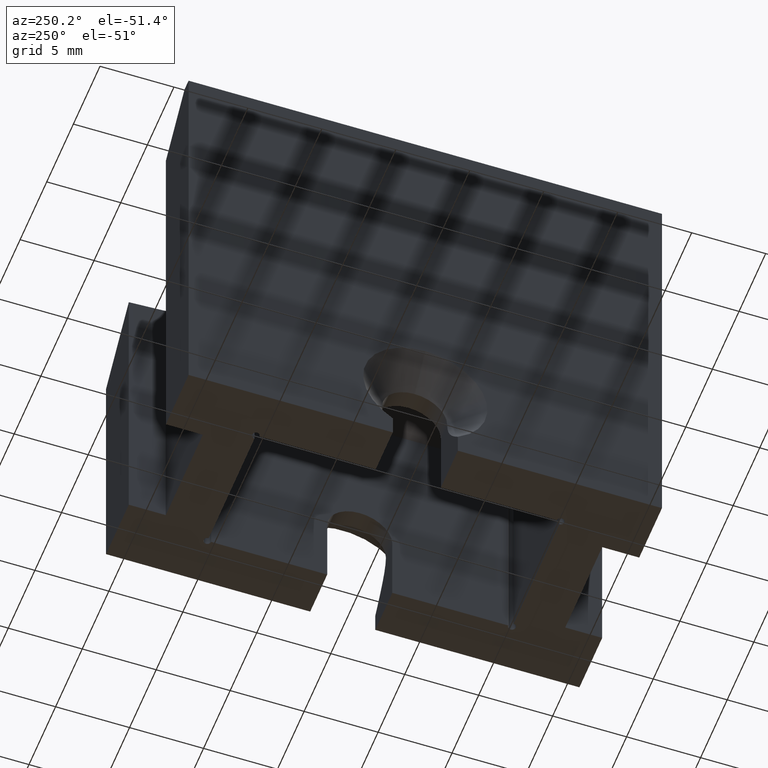
[diagram: clean part render]
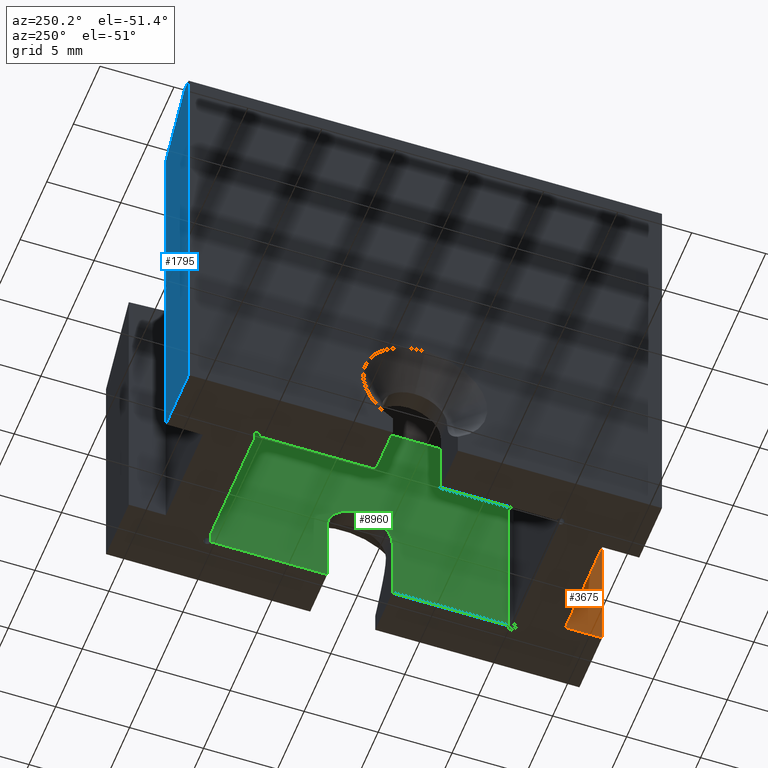
[diagram: same view with three faces highlighted in distinct colors, each labeled with its STEP entity id]
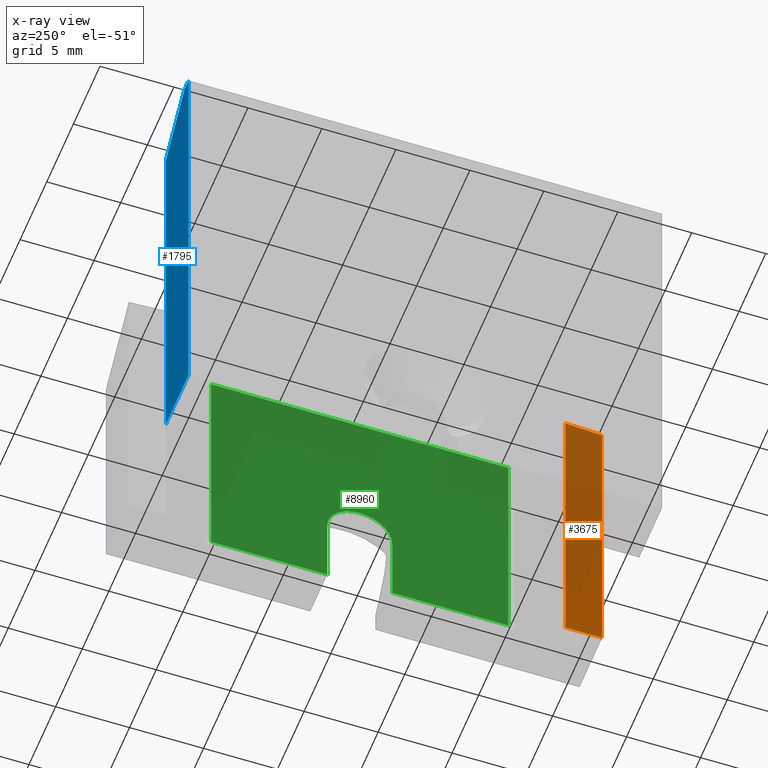
[diagram: x-ray of the same camera — body ghosted, the three highlighted faces saturated]
A machine part, auxiliary view with three faces highlighted in distinct colors.
The next image is the same camera in x-ray (body ghosted, the three faces saturated) — at least one of them is partly hidden behind the body in this view.
Their STEP definitions:

[orange] entity #3675 — the highlighted planar face has unit normal (1, -0, 0).
#258 = ORIENTED_EDGE ( 'NONE', *, *, #10290, .F. ) ;
#780 = FACE_OUTER_BOUND ( 'NONE', #6220, .T. ) ;
#811 = ORIENTED_EDGE ( 'NONE', *, *, #5697, .T. ) ;
#822 = VERTEX_POINT ( 'NONE', #12410 ) ;
#884 = ORIENTED_EDGE ( 'NONE', *, *, #1241, .T. ) ;
#893 = VECTOR ( 'NONE', #11157, 1000.000000000000114 ) ;
#1241 = EDGE_CURVE ( 'NONE', #5419, #822, #5281, .T. ) ;
#1320 = DIRECTION ( 'NONE',  ( -0.000000000000000000, -0.000000000000000000, -1.000000000000000000 ) ) ;
#1560 = AXIS2_PLACEMENT_3D ( 'NONE', #7997, #1972, #5006 ) ;
#1972 = DIRECTION ( 'NONE',  ( 1.000000000000000000, -1.734723475976804383E-16, 0.000000000000000000 ) ) ;
#2600 = CARTESIAN_POINT ( 'NONE',  ( 3.475000000000003642, -13.50000000000000000, -15.00000000000000000 ) ) ;
#3128 = LINE ( 'NONE', #9351, #10540 ) ;
#3199 = VERTEX_POINT ( 'NONE', #13059 ) ;
#3675 = ADVANCED_FACE ( 'NONE', ( #780 ), #3992, .F. ) ;
#3992 = PLANE ( 'NONE',  #1560 ) ;
#4628 = VERTEX_POINT ( 'NONE', #5203 ) ;
#5006 = DIRECTION ( 'NONE',  ( 1.734723475976804383E-16, 1.000000000000000000, 0.000000000000000000 ) ) ;
#5203 = CARTESIAN_POINT ( 'NONE',  ( 3.475000000000003642, -13.50000000000000000, 5.806261581520428372 ) ) ;
#5211 = DIRECTION ( 'NONE',  ( -0.000000000000000000, -0.000000000000000000, -1.000000000000000000 ) ) ;
#5281 = LINE ( 'NONE', #12499, #12665 ) ;
#5369 = CARTESIAN_POINT ( 'NONE',  ( 3.475000000000003197, -16.00000000000000355, 15.00000000000000000 ) ) ;
#5419 = VERTEX_POINT ( 'NONE', #2600 ) ;
#5697 = EDGE_CURVE ( 'NONE', #4628, #5419, #3128, .T. ) ;
#6220 = EDGE_LOOP ( 'NONE', ( #9397, #811, #884, #258 ) ) ;
#6286 = LINE ( 'NONE', #12279, #893 ) ;
#6456 = EDGE_CURVE ( 'NONE', #4628, #3199, #6286, .T. ) ;
#7997 = CARTESIAN_POINT ( 'NONE',  ( 3.475000000000003197, -16.00000000000000355, 15.00000000000000000 ) ) ;
#8462 = DIRECTION ( 'NONE',  ( -1.734723475976804383E-16, -1.000000000000000000, -0.000000000000000000 ) ) ;
#9351 = CARTESIAN_POINT ( 'NONE',  ( 3.475000000000003642, -13.50000000000000000, 15.00000000000000000 ) ) ;
#9397 = ORIENTED_EDGE ( 'NONE', *, *, #6456, .F. ) ;
#9959 = LINE ( 'NONE', #5369, #12948 ) ;
#10290 = EDGE_CURVE ( 'NONE', #3199, #822, #9959, .T. ) ;
#10540 = VECTOR ( 'NONE', #5211, 1000.000000000000000 ) ;
#11157 = DIRECTION ( 'NONE',  ( -1.793028064205715846E-16, -0.9979685720761735102, -0.06370815605747295884 ) ) ;
#12279 = CARTESIAN_POINT ( 'NONE',  ( 3.475000000000003197, -15.40532689529880983, 5.684629631795130145 ) ) ;
#12410 = CARTESIAN_POINT ( 'NONE',  ( 3.475000000000003197, -16.00000000000000355, -15.00000000000000000 ) ) ;
#12499 = CARTESIAN_POINT ( 'NONE',  ( 3.475000000000003197, -16.00000000000000355, -15.00000000000000000 ) ) ;
#12665 = VECTOR ( 'NONE', #8462, 1000.000000000000000 ) ;
#12948 = VECTOR ( 'NONE', #1320, 1000.000000000000000 ) ;
#13059 = CARTESIAN_POINT ( 'NONE',  ( 3.475000000000005862, -16.00000000000000355, 5.646666986459849547 ) ) ;

[blue] entity #1795 — the highlighted planar face has unit normal (0, -1, 0).
#46 = LINE ( 'NONE', #4673, #10448 ) ;
#63 = CARTESIAN_POINT ( 'NONE',  ( -3.474999999999999645, 16.00000000000000000, 15.00000000000000000 ) ) ;
#112 = EDGE_CURVE ( 'NONE', #9912, #10778, #11420, .T. ) ;
#133 = VECTOR ( 'NONE', #695, 1000.000000000000000 ) ;
#233 = CARTESIAN_POINT ( 'NONE',  ( -7.750000000000000000, 16.00000000000000000, -15.00000000000000000 ) ) ;
#330 = LINE ( 'NONE', #6939, #5380 ) ;
#542 = DIRECTION ( 'NONE',  ( -1.000000000000000000, -0.000000000000000000, -0.000000000000000000 ) ) ;
#695 = DIRECTION ( 'NONE',  ( 0.7459376616259146831, 0.000000000000000000, -0.6660157693088524233 ) ) ;
#932 = LINE ( 'NONE', #9426, #4301 ) ;
#1020 = CARTESIAN_POINT ( 'NONE',  ( -7.750000000000000000, 16.00000000000000000, 15.00000000000000000 ) ) ;
#1795 = ADVANCED_FACE ( 'NONE', ( #8573 ), #7952, .F. ) ;
#2000 = DIRECTION ( 'NONE',  ( -1.000000000000000000, -0.000000000000000000, -0.000000000000000000 ) ) ;
#2305 = VERTEX_POINT ( 'NONE', #1020 ) ;
#2385 = ORIENTED_EDGE ( 'NONE', *, *, #112, .T. ) ;
#4301 = VECTOR ( 'NONE', #542, 1000.000000000000000 ) ;
#4673 = CARTESIAN_POINT ( 'NONE',  ( -7.750000000000000000, 16.00000000000000000, 15.00000000000000000 ) ) ;
#4709 = DIRECTION ( 'NONE',  ( -0.000000000000000000, -0.000000000000000000, -1.000000000000000000 ) ) ;
#4882 = CARTESIAN_POINT ( 'NONE',  ( -7.750000000000000000, 16.00000000000000000, 15.00000000000000000 ) ) ;
#4989 = ORIENTED_EDGE ( 'NONE', *, *, #10004, .F. ) ;
#5323 = ORIENTED_EDGE ( 'NONE', *, *, #9245, .F. ) ;
#5380 = VECTOR ( 'NONE', #2000, 1000.000000000000000 ) ;
#5470 = EDGE_LOOP ( 'NONE', ( #4989, #7061, #2385, #9029, #5323 ) ) ;
#5553 = AXIS2_PLACEMENT_3D ( 'NONE', #4882, #12781, #7911 ) ;
#6270 = EDGE_CURVE ( 'NONE', #9871, #9912, #6767, .T. ) ;
#6767 = LINE ( 'NONE', #12815, #133 ) ;
#6939 = CARTESIAN_POINT ( 'NONE',  ( -7.750000000000000000, 16.00000000000000000, -15.00000000000000000 ) ) ;
#7061 = ORIENTED_EDGE ( 'NONE', *, *, #6270, .T. ) ;
#7511 = CARTESIAN_POINT ( 'NONE',  ( -3.474999999999999645, 16.00000000000000000, -15.00000000000000000 ) ) ;
#7911 = DIRECTION ( 'NONE',  ( 0.000000000000000000, -0.000000000000000000, -1.000000000000000000 ) ) ;
#7952 = PLANE ( 'NONE',  #5553 ) ;
#8276 = VECTOR ( 'NONE', #9129, 1000.000000000000000 ) ;
#8573 = FACE_OUTER_BOUND ( 'NONE', #5470, .T. ) ;
#9029 = ORIENTED_EDGE ( 'NONE', *, *, #11341, .T. ) ;
#9129 = DIRECTION ( 'NONE',  ( -0.000000000000000000, -0.000000000000000000, -1.000000000000000000 ) ) ;
#9245 = EDGE_CURVE ( 'NONE', #2305, #9543, #46, .T. ) ;
#9426 = CARTESIAN_POINT ( 'NONE',  ( -7.750000000000000000, 16.00000000000000000, 15.00000000000000000 ) ) ;
#9543 = VERTEX_POINT ( 'NONE', #233 ) ;
#9871 = VERTEX_POINT ( 'NONE', #9999 ) ;
#9912 = VERTEX_POINT ( 'NONE', #11070 ) ;
#9999 = CARTESIAN_POINT ( 'NONE',  ( -7.000732975164933869, 15.99999999999999289, 15.00000000000000000 ) ) ;
#10004 = EDGE_CURVE ( 'NONE', #9871, #2305, #932, .T. ) ;
#10448 = VECTOR ( 'NONE', #4709, 1000.000000000000000 ) ;
#10778 = VERTEX_POINT ( 'NONE', #7511 ) ;
#11070 = CARTESIAN_POINT ( 'NONE',  ( -3.474999999999998757, 15.99999999999999289, 11.85202412931702121 ) ) ;
#11341 = EDGE_CURVE ( 'NONE', #10778, #9543, #330, .T. ) ;
#11420 = LINE ( 'NONE', #63, #8276 ) ;
#12781 = DIRECTION ( 'NONE',  ( 0.000000000000000000, -1.000000000000000000, 0.000000000000000000 ) ) ;
#12815 = CARTESIAN_POINT ( 'NONE',  ( -7.417642377202334991, 15.99999999999999289, 15.37224053753339348 ) ) ;

[green] entity #8960 — the highlighted planar face has unit normal (-1, 0, 0).
#205 = EDGE_CURVE ( 'NONE', #11067, #5407, #987, .T. ) ;
#294 = EDGE_CURVE ( 'NONE', #4996, #4930, #12530, .T. ) ;
#361 = VECTOR ( 'NONE', #10014, 1000.000000000000000 ) ;
#518 = CARTESIAN_POINT ( 'NONE',  ( 4.549999999999999822, 0.000000000000000000, -15.00000000000000000 ) ) ;
#603 = DIRECTION ( 'NONE',  ( 0.000000000000000000, 1.000000000000000000, 0.000000000000000000 ) ) ;
#605 = CARTESIAN_POINT ( 'NONE',  ( 4.549999999999998934, -2.200000000000000178, -10.00000000000000178 ) ) ;
#987 = LINE ( 'NONE', #5456, #11090 ) ;
#1113 = FACE_OUTER_BOUND ( 'NONE', #10489, .T. ) ;
#1603 = ORIENTED_EDGE ( 'NONE', *, *, #1934, .T. ) ;
#1641 = CARTESIAN_POINT ( 'NONE',  ( 4.549999999999998934, -10.05000000000000071, 1.067240141914640228 ) ) ;
#1876 = EDGE_CURVE ( 'NONE', #6861, #4541, #2396, .T. ) ;
#1934 = EDGE_CURVE ( 'NONE', #4823, #4541, #9171, .T. ) ;
#1983 = ORIENTED_EDGE ( 'NONE', *, *, #3722, .F. ) ;
#2257 = DIRECTION ( 'NONE',  ( 0.000000000000000000, 1.000000000000000000, 0.000000000000000000 ) ) ;
#2282 = DIRECTION ( 'NONE',  ( -1.000000000000000000, 0.000000000000000000, 0.000000000000000000 ) ) ;
#2396 = LINE ( 'NONE', #8997, #361 ) ;
#2550 = CARTESIAN_POINT ( 'NONE',  ( 4.549999999999999822, -10.05000000000000071, 10.01976529822172779 ) ) ;
#2815 = CARTESIAN_POINT ( 'NONE',  ( 4.549999999999999822, 2.200000000000000178, -15.00000000000000000 ) ) ;
#2925 = VERTEX_POINT ( 'NONE', #2815 ) ;
#3030 = CARTESIAN_POINT ( 'NONE',  ( 4.549999999999998934, -16.00000000000000355, 1.067240141914640228 ) ) ;
#3123 = DIRECTION ( 'NONE',  ( 0.000000000000000000, 1.000000000000000000, 0.000000000000000000 ) ) ;
#3449 = ORIENTED_EDGE ( 'NONE', *, *, #294, .F. ) ;
#3722 = EDGE_CURVE ( 'NONE', #4930, #2925, #8044, .T. ) ;
#3836 = CIRCLE ( 'NONE', #11991, 2.200000000000000622 ) ;
#4049 = PLANE ( 'NONE',  #8549 ) ;
#4162 = DIRECTION ( 'NONE',  ( 0.000000000000000000, 0.000000000000000000, -1.000000000000000000 ) ) ;
#4541 = VERTEX_POINT ( 'NONE', #12991 ) ;
#4583 = CARTESIAN_POINT ( 'NONE',  ( 4.549999999999999822, -10.05000000000000071, -15.00000000000000000 ) ) ;
#4744 = CARTESIAN_POINT ( 'NONE',  ( 4.549999999999999822, -2.200000000000000178, -15.00000000000000000 ) ) ;
#4816 = AXIS2_PLACEMENT_3D ( 'NONE', #12422, #2282, #9347 ) ;
#4823 = VERTEX_POINT ( 'NONE', #1641 ) ;
#4930 = VERTEX_POINT ( 'NONE', #9812 ) ;
#4996 = VERTEX_POINT ( 'NONE', #6057 ) ;
#5096 = VECTOR ( 'NONE', #9711, 1000.000000000000000 ) ;
#5230 = VECTOR ( 'NONE', #603, 1000.000000000000000 ) ;
#5407 = VERTEX_POINT ( 'NONE', #4744 ) ;
#5456 = CARTESIAN_POINT ( 'NONE',  ( 4.549999999999999822, 0.000000000000000000, -15.00000000000000000 ) ) ;
#5621 = DIRECTION ( 'NONE',  ( -0.000000000000000000, -0.000000000000000000, -1.000000000000000000 ) ) ;
#5749 = ORIENTED_EDGE ( 'NONE', *, *, #205, .F. ) ;
#5855 = CARTESIAN_POINT ( 'NONE',  ( 4.549999999999999822, 10.05000000000000071, -15.00000000000000000 ) ) ;
#6057 = CARTESIAN_POINT ( 'NONE',  ( 4.549999999999998934, 0.000000000000000000, -7.800000000000001599 ) ) ;
#6144 = CARTESIAN_POINT ( 'NONE',  ( 4.549999999999999822, 16.00000000000000000, 15.00000000000000000 ) ) ;
#6184 = VECTOR ( 'NONE', #3123, 1000.000000000000000 ) ;
#6189 = VERTEX_POINT ( 'NONE', #605 ) ;
#6203 = EDGE_CURVE ( 'NONE', #4823, #11067, #11951, .T. ) ;
#6412 = ORIENTED_EDGE ( 'NONE', *, *, #9230, .F. ) ;
#6623 = ORIENTED_EDGE ( 'NONE', *, *, #7703, .F. ) ;
#6861 = VERTEX_POINT ( 'NONE', #5855 ) ;
#6914 = ORIENTED_EDGE ( 'NONE', *, *, #6203, .F. ) ;
#7440 = LINE ( 'NONE', #518, #5230 ) ;
#7703 = EDGE_CURVE ( 'NONE', #6189, #4996, #3836, .T. ) ;
#7923 = DIRECTION ( 'NONE',  ( -1.000000000000000000, 0.000000000000000000, 0.000000000000000000 ) ) ;
#8044 = LINE ( 'NONE', #10183, #9943 ) ;
#8178 = DIRECTION ( 'NONE',  ( -1.000000000000000000, 0.000000000000000000, 0.000000000000000000 ) ) ;
#8549 = AXIS2_PLACEMENT_3D ( 'NONE', #6144, #8178, #10198 ) ;
#8903 = DIRECTION ( 'NONE',  ( 0.000000000000000000, 0.000000000000000000, 1.000000000000000000 ) ) ;
#8960 = ADVANCED_FACE ( 'NONE', ( #1113 ), #4049, .T. ) ;
#8997 = CARTESIAN_POINT ( 'NONE',  ( 4.549999999999999822, 10.05000000000000071, 10.01976529822172779 ) ) ;
#9171 = LINE ( 'NONE', #3030, #6184 ) ;
#9230 = EDGE_CURVE ( 'NONE', #5407, #6189, #11054, .T. ) ;
#9347 = DIRECTION ( 'NONE',  ( 0.000000000000000000, 0.000000000000000000, 1.000000000000000000 ) ) ;
#9711 = DIRECTION ( 'NONE',  ( 0.000000000000000000, 0.000000000000000000, 1.000000000000000000 ) ) ;
#9812 = CARTESIAN_POINT ( 'NONE',  ( 4.549999999999998934, 2.200000000000000178, -10.00000000000000178 ) ) ;
#9860 = CARTESIAN_POINT ( 'NONE',  ( 4.549999999999998934, 0.000000000000000000, -10.00000000000000178 ) ) ;
#9943 = VECTOR ( 'NONE', #4162, 1000.000000000000000 ) ;
#10014 = DIRECTION ( 'NONE',  ( 0.000000000000000000, 0.000000000000000000, 1.000000000000000000 ) ) ;
#10183 = CARTESIAN_POINT ( 'NONE',  ( 4.549999999999999822, 2.200000000000000622, 15.00000000000000000 ) ) ;
#10198 = DIRECTION ( 'NONE',  ( 0.000000000000000000, 0.000000000000000000, 1.000000000000000000 ) ) ;
#10213 = VECTOR ( 'NONE', #5621, 1000.000000000000000 ) ;
#10489 = EDGE_LOOP ( 'NONE', ( #6412, #5749, #6914, #1603, #12859, #10893, #1983, #3449, #6623 ) ) ;
#10829 = EDGE_CURVE ( 'NONE', #2925, #6861, #7440, .T. ) ;
#10893 = ORIENTED_EDGE ( 'NONE', *, *, #10829, .F. ) ;
#11054 = LINE ( 'NONE', #12703, #5096 ) ;
#11067 = VERTEX_POINT ( 'NONE', #4583 ) ;
#11090 = VECTOR ( 'NONE', #2257, 1000.000000000000000 ) ;
#11951 = LINE ( 'NONE', #2550, #10213 ) ;
#11991 = AXIS2_PLACEMENT_3D ( 'NONE', #9860, #7923, #8903 ) ;
#12422 = CARTESIAN_POINT ( 'NONE',  ( 4.549999999999998934, 0.000000000000000000, -10.00000000000000178 ) ) ;
#12530 = CIRCLE ( 'NONE', #4816, 2.200000000000000622 ) ;
#12703 = CARTESIAN_POINT ( 'NONE',  ( 4.549999999999999822, -2.200000000000000622, 15.00000000000000000 ) ) ;
#12859 = ORIENTED_EDGE ( 'NONE', *, *, #1876, .F. ) ;
#12991 = CARTESIAN_POINT ( 'NONE',  ( 4.549999999999998934, 10.05000000000000071, 1.067240141914640006 ) ) ;